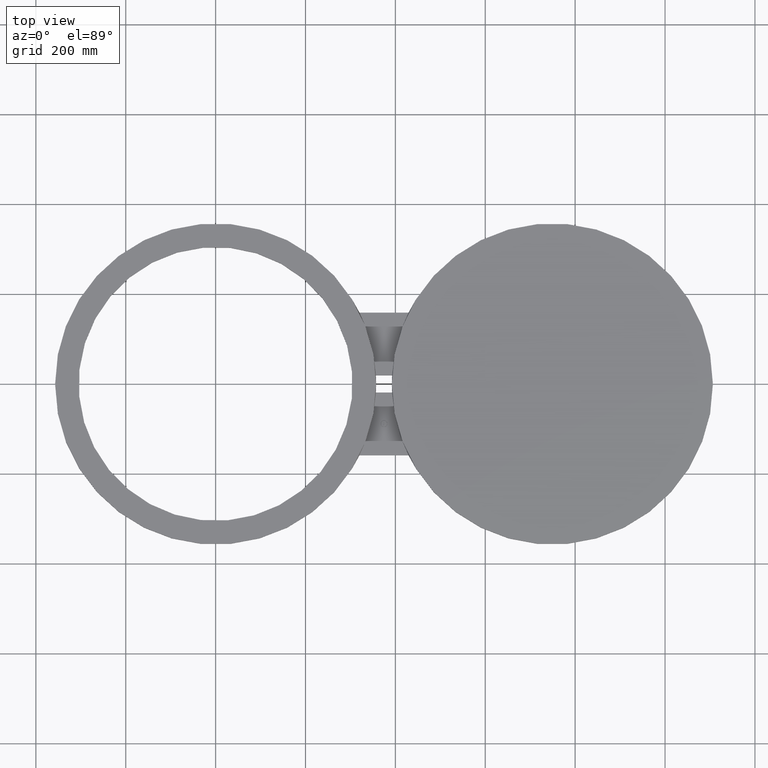
[diagram: clean part render]
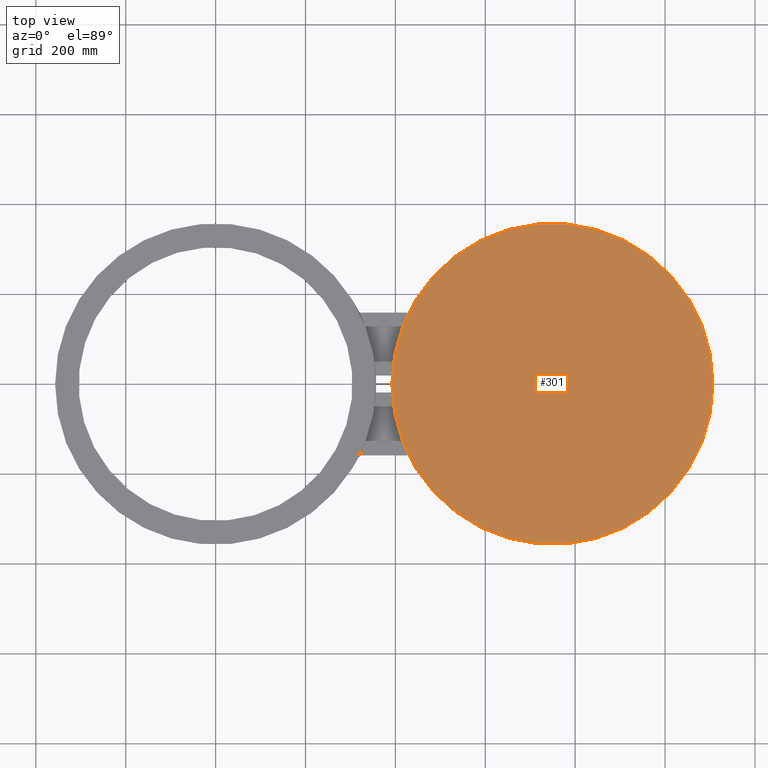
[diagram: same view with one face highlighted and labeled with its STEP entity id]
A machine part, top view. The second image highlights one B-rep face of the part: STEP entity #301.
In plain terms, the highlighted planar face has unit normal (0, 0, 1).
Its self-contained STEP definition (entity closure, byte-faithful):
#65=AXIS2_PLACEMENT_3D('Circle Axis2P3D',#63,#64,$) ;
#290=AXIS2_PLACEMENT_3D('Plane Axis2P3D',#287,#288,#289) ;
#294=AXIS2_PLACEMENT_3D('Circle Axis2P3D',#292,#293,$) ;
#46=CARTESIAN_POINT('Vertex',(15.4400000001,5.33456145711E-015,0.625000000002)) ;
#60=CARTESIAN_POINT('Vertex',(43.5600000002,1.69001258283E-016,0.625000000002)) ;
#63=CARTESIAN_POINT('Axis2P3D Location',(29.5000000001,3.6127080575E-015,0.625000000002)) ;
#287=CARTESIAN_POINT('Axis2P3D Location',(0.,0.,0.625000000002)) ;
#292=CARTESIAN_POINT('Axis2P3D Location',(29.5000000001,3.6127080575E-015,0.625000000002)) ;
#64=DIRECTION('Axis2P3D Direction',(0.,0.,0.0393700787402)) ;
#288=DIRECTION('Axis2P3D Direction',(0.,0.,0.0393700787402)) ;
#289=DIRECTION('Axis2P3D XDirection',(0.0393700787402,0.,0.)) ;
#293=DIRECTION('Axis2P3D Direction',(0.,0.,0.0393700787402)) ;
#298=ORIENTED_EDGE('',*,*,#67,.T.) ;
#299=ORIENTED_EDGE('',*,*,#296,.T.) ;
#301=ADVANCED_FACE('PartBody',(#300),#291,.T.) ;
#66=CIRCLE('generated circle',#65,14.0600000001) ;
#295=CIRCLE('generated circle',#294,14.0600000001) ;
#67=EDGE_CURVE('',#47,#61,#66,.T.) ;
#296=EDGE_CURVE('',#61,#47,#295,.T.) ;
#297=EDGE_LOOP('',(#298,#299)) ;
#300=FACE_OUTER_BOUND('',#297,.T.) ;
#291=PLANE('',#290) ;
#47=VERTEX_POINT('',#46) ;
#61=VERTEX_POINT('',#60) ;